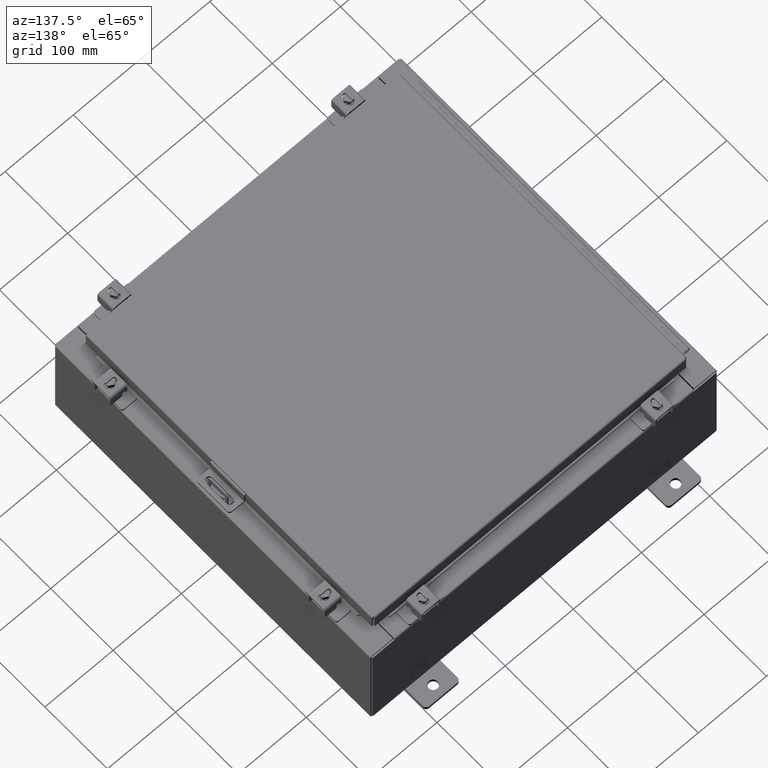
[diagram: clean part render]
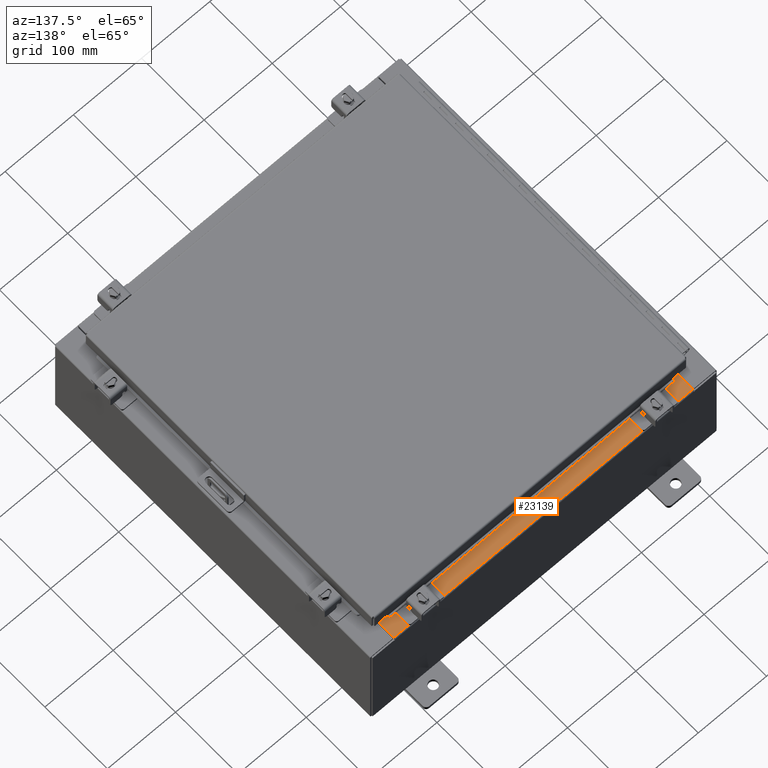
[diagram: same view with one face highlighted and labeled with its STEP entity id]
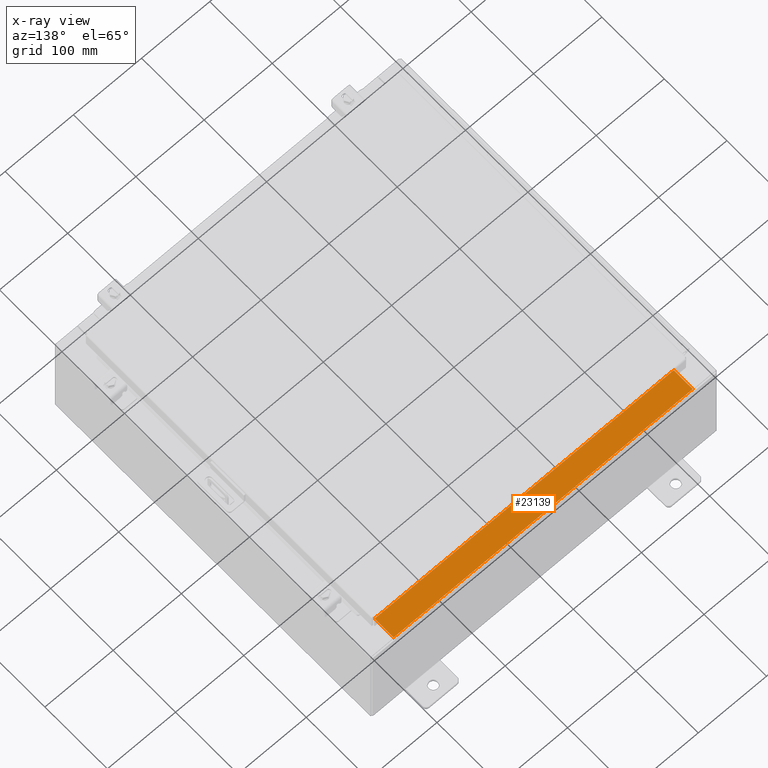
[diagram: x-ray of the same camera — body ghosted, the highlighted face saturated]
A machine part, auxiliary view. The second image highlights one B-rep face of the part: STEP entity #23139.
The next image is the same camera in x-ray: the body ghosted, the highlighted face saturated — about 0% of this face is hidden behind the body in this view.
In plain terms, the highlighted planar face has unit normal (0, 0, 1).
Its self-contained STEP definition (entity closure, byte-faithful):
#99 = ORIENTED_EDGE ( 'NONE', *, *, #26817, .F. ) ;
#846 = CARTESIAN_POINT ( 'NONE',  ( -8.637200000000000000, -1.287299999999999200, 3.000000000000005300 ) ) ;
#1486 = ORIENTED_EDGE ( 'NONE', *, *, #27414, .T. ) ;
#2913 = CARTESIAN_POINT ( 'NONE',  ( -2.773851121247453900E-018, -0.08770000000000000000, 3.000000000000001300 ) ) ;
#3836 = CARTESIAN_POINT ( 'NONE',  ( 8.637200000000000000, -1.300299999999999800, 3.000000000000005300 ) ) ;
#4252 = EDGE_LOOP ( 'NONE', ( #12075, #99, #16754, #1486 ) ) ;
#4846 = DIRECTION ( 'NONE',  ( 0.0000000000000000000, 3.566381192773190000E-015, 1.000000000000000000 ) ) ;
#5193 = DIRECTION ( 'NONE',  ( -1.000000000000000000, 3.162886113166609200E-017, -1.128005754888089100E-031 ) ) ;
#5784 = VERTEX_POINT ( 'NONE', #26790 ) ;
#6222 = DIRECTION ( 'NONE',  ( -0.0000000000000000000, -1.000000000000000000, 3.566381192773190000E-015 ) ) ;
#7266 = CARTESIAN_POINT ( 'NONE',  ( -8.637200000000000000, -0.07469999999999973900, 3.000000000000000900 ) ) ;
#8425 = LINE ( 'NONE', #3836, #19804 ) ;
#9326 = VECTOR ( 'NONE', #5193, 39.37007874015748100 ) ;
#9844 = CARTESIAN_POINT ( 'NONE',  ( 8.637200000000000000, -0.08769999999999965300, 3.000000000000000900 ) ) ;
#11484 = LINE ( 'NONE', #13657, #22848 ) ;
#12075 = ORIENTED_EDGE ( 'NONE', *, *, #14051, .F. ) ;
#13058 = FACE_OUTER_BOUND ( 'NONE', #4252, .T. ) ;
#13216 = AXIS2_PLACEMENT_3D ( 'NONE', #22923, #4846, #20742 ) ;
#13657 = CARTESIAN_POINT ( 'NONE',  ( 8.637200000000000000, -1.287299999999999900, 3.000000000000005300 ) ) ;
#13859 = PLANE ( 'NONE',  #13216 ) ;
#14051 = EDGE_CURVE ( 'NONE', #23344, #5784, #17108, .T. ) ;
#15964 = DIRECTION ( 'NONE',  ( -1.000000000000000000, 0.0000000000000000000, 0.0000000000000000000 ) ) ;
#16402 = DIRECTION ( 'NONE',  ( -0.0000000000000000000, 1.000000000000000000, -3.566381192773190000E-015 ) ) ;
#16754 = ORIENTED_EDGE ( 'NONE', *, *, #23556, .F. ) ;
#17108 = LINE ( 'NONE', #7266, #23148 ) ;
#19804 = VECTOR ( 'NONE', #6222, 39.37007874015748100 ) ;
#20742 = DIRECTION ( 'NONE',  ( 0.0000000000000000000, -1.000000000000000000, 3.566381192773190000E-015 ) ) ;
#22848 = VECTOR ( 'NONE', #15964, 39.37007874015748100 ) ;
#22923 = CARTESIAN_POINT ( 'NONE',  ( 0.0000000000000000000, 1.069354855923099900E-014, 3.000000000000000900 ) ) ;
#23139 = ADVANCED_FACE ( 'NONE', ( #13058 ), #13859, .T. ) ;
#23148 = VECTOR ( 'NONE', #16402, 39.37007874015748100 ) ;
#23210 = VERTEX_POINT ( 'NONE', #27811 ) ;
#23263 = VERTEX_POINT ( 'NONE', #9844 ) ;
#23344 = VERTEX_POINT ( 'NONE', #846 ) ;
#23556 = EDGE_CURVE ( 'NONE', #23263, #23210, #8425, .T. ) ;
#26790 = CARTESIAN_POINT ( 'NONE',  ( -8.637200000000000000, -0.08770000000000000000, 3.000000000000000900 ) ) ;
#26817 = EDGE_CURVE ( 'NONE', #23210, #23344, #11484, .T. ) ;
#27414 = EDGE_CURVE ( 'NONE', #23263, #5784, #27468, .T. ) ;
#27468 = LINE ( 'NONE', #2913, #9326 ) ;
#27811 = CARTESIAN_POINT ( 'NONE',  ( 8.637200000000000000, -1.287299999999999900, 3.000000000000005300 ) ) ;